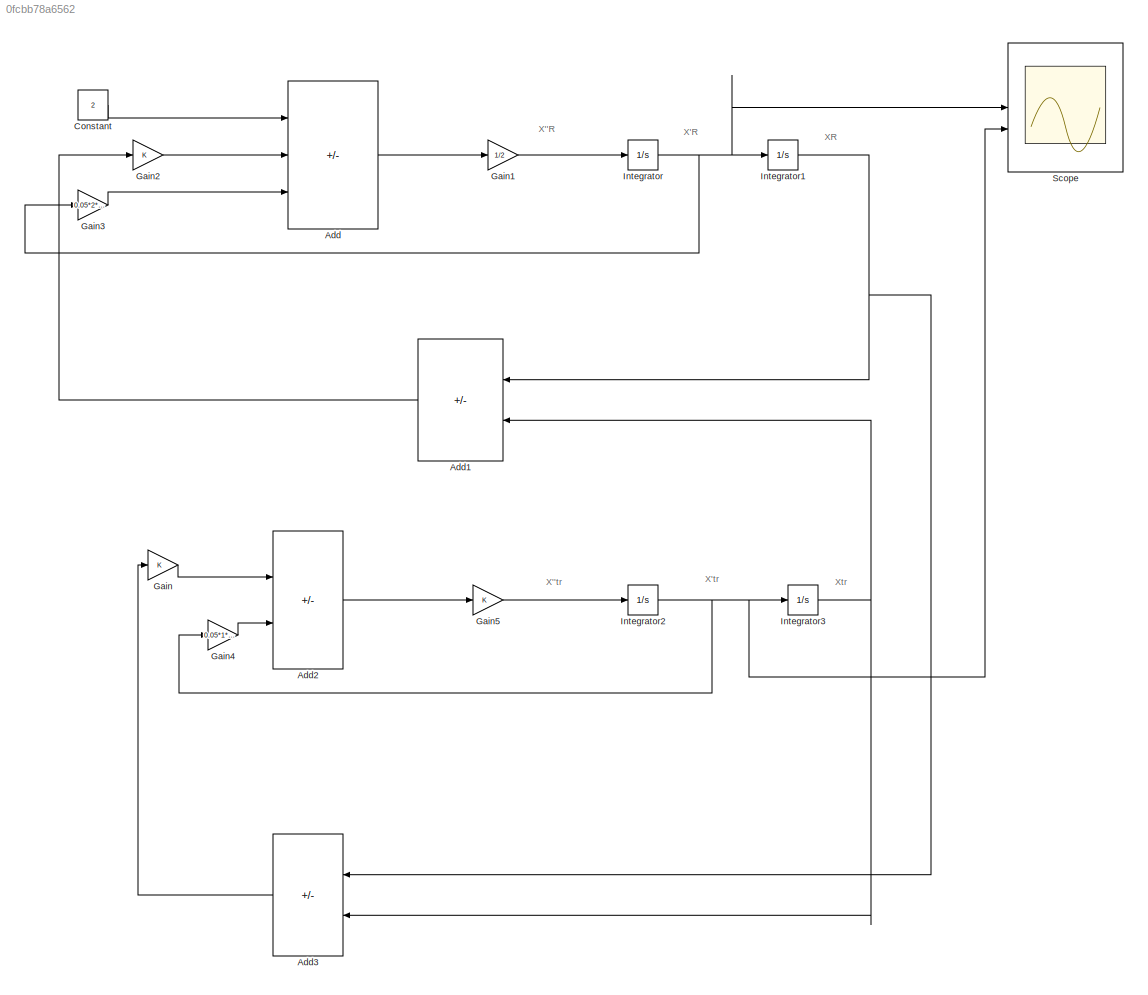
MODEL slx_0fcbb78a6562
KIND model
CONFIG AbsTol = auto
CONFIG EnableMultiTasking = off
CONFIG FixedStep = auto
CONFIG MaxStep = auto
CONFIG MinStep = auto
CONFIG RelTol = 1e-3
CONFIG SampleTimeConstraint = Unconstrained
CONFIG SolverName = VariableStepAuto
CONFIG StartTime = 0.0
CONFIG StopTime = 10
BLOCK [Sum] Add
  IconShape = rectangular
  Inputs = +--
BLOCK [Sum] Add1
  IconShape = rectangular
  Inputs = +-
BLOCK [Sum] Add2
  IconShape = rectangular
  Inputs = +-
BLOCK [Sum] Add3
  IconShape = rectangular
  Inputs = +-
BLOCK [Constant] Constant
  Value = 2
BLOCK [Gain] Gain
BLOCK [Gain] Gain1
  Gain = 1/2
BLOCK [Gain] Gain2
BLOCK [Gain] Gain3
  Gain = 0.05*2*9.81
BLOCK [Gain] Gain4
  Gain = 0.05*1*9.81
BLOCK [Gain] Gain5
BLOCK [Integrator] Integrator
BLOCK [Integrator] Integrator1
BLOCK [Integrator] Integrator2
BLOCK [Integrator] Integrator3
BLOCK [Scope] Scope
  Floating = off
  NumInputPorts = 2
  ScopeSpecificationString = Simulink.scopes.TimeScopeBlockCfg('CurrentConfiguration', extmgr.ConfigurationSet(extmgr.Configuration('Core','General UI',true),extmgr.Configuration('Core','Source UI',true),extmgr.Configuration('Sources','WiredSimulink',true),extmgr.Configuration('Visuals','Time Domain',true,'SerializedDisplays',{struct('MinYLimReal','-0.1744','MaxYLimReal','1.50464','YLabelReal','','MinYLimMag','0.00000','MaxYL...<+1391ch>
ANNOTATION (root): X''R
ANNOTATION (root): X''tr
ANNOTATION (root): X'R
ANNOTATION (root): X'tr
ANNOTATION (root): XR
ANNOTATION (root): Xtr
LINE Add1:1 -> Gain2:1
LINE Add2:1 -> Gain5:1
LINE Add3:1 -> Gain:1
LINE Add:1 -> Gain1:1
LINE Constant:1 -> Add:1
LINE Gain1:1 -> Integrator:1
LINE Gain2:1 -> Add:2
LINE Gain3:1 -> Add:3
LINE Gain4:1 -> Add2:2
LINE Gain5:1 -> Integrator2:1
LINE Gain:1 -> Add2:1
NET Integrator1:1 -> Add1:1, Add3:1
NET Integrator2:1 -> Gain4:1, Integrator3:1, Scope:2
NET Integrator3:1 -> Add1:2, Add3:2
NET Integrator:1 -> Gain3:1, Integrator1:1, Scope:1
note: NET lines group one-source signal fan-out (src -> all destinations, sorted); 1:1 wires keep LINE
